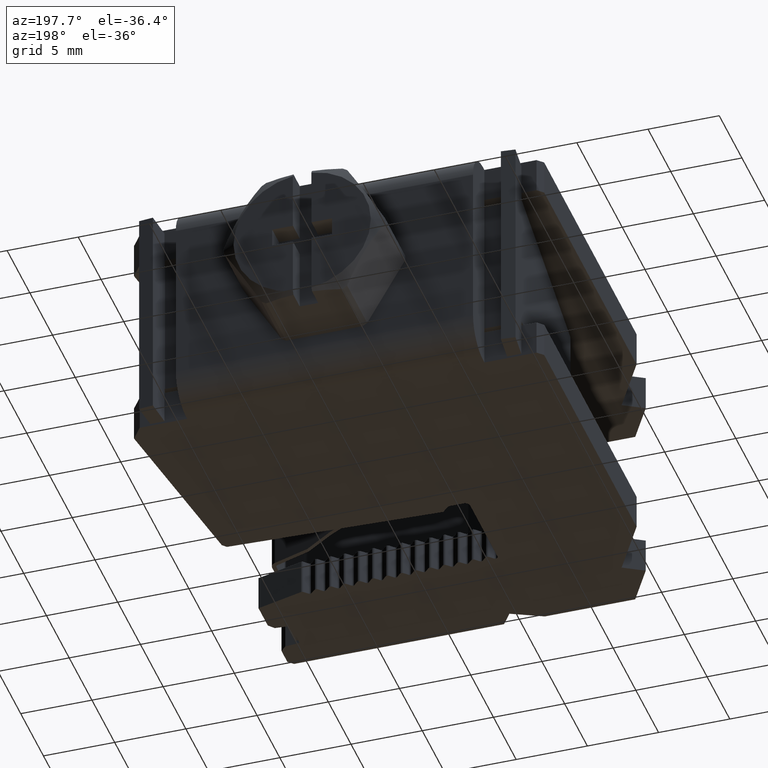
[diagram: clean part render]
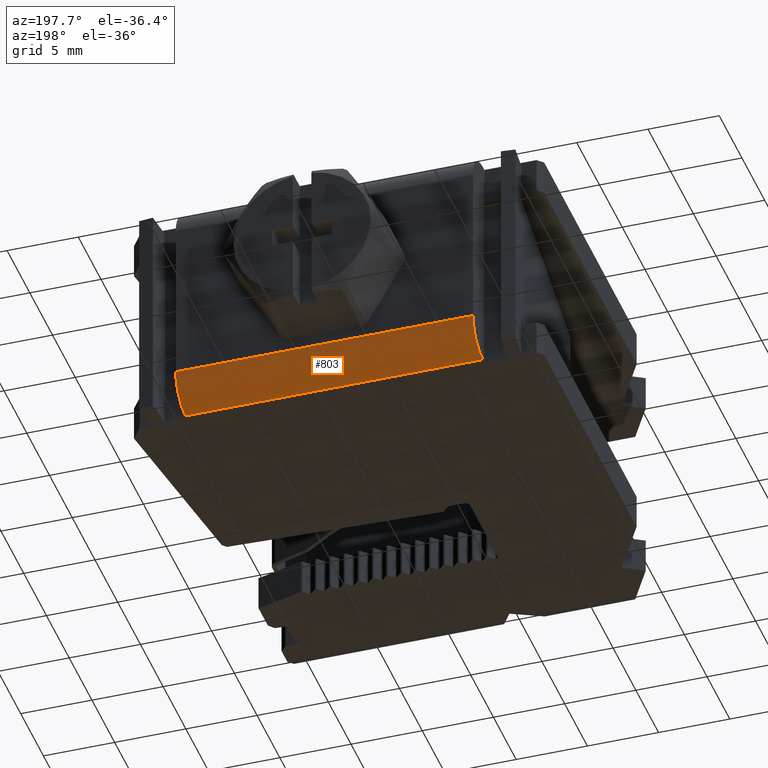
[diagram: same view with one face highlighted and labeled with its STEP entity id]
A machine part, auxiliary view. The second image highlights one B-rep face of the part: STEP entity #803.
In plain terms, the highlighted cylindrical surface (edge-blend (fillet) strip) has radius 2.15 mm, axis along (-1, -0, 0).
Its self-contained STEP definition (entity closure, byte-faithful):
#803 = ADVANCED_FACE ( 'NONE', ( #6444 ), #6418, .T. ) ;
#2039 = EDGE_CURVE ( 'NONE', #2259, #2277, #8437, .T. ) ;
#2044 = EDGE_CURVE ( 'NONE', #2237, #2259, #9202, .T. ) ;
#2073 = EDGE_CURVE ( 'NONE', #3571, #2237, #10522, .T. ) ;
#2086 = EDGE_CURVE ( 'NONE', #2277, #3571, #9257, .T. ) ;
#2237 = VERTEX_POINT ( 'NONE', #9857 ) ;
#2259 = VERTEX_POINT ( 'NONE', #9865 ) ;
#2277 = VERTEX_POINT ( 'NONE', #9846 ) ;
#3571 = VERTEX_POINT ( 'NONE', #10804 ) ;
#3592 = ORIENTED_EDGE ( 'NONE', *, *, #2086, .F. ) ;
#3631 = ORIENTED_EDGE ( 'NONE', *, *, #2044, .F. ) ;
#3641 = ORIENTED_EDGE ( 'NONE', *, *, #2073, .F. ) ;
#3656 = ORIENTED_EDGE ( 'NONE', *, *, #2039, .F. ) ;
#6188 = AXIS2_PLACEMENT_3D ( 'NONE', #6415, #6410, #6447 ) ;
#6410 = DIRECTION ( 'NONE',  ( -1.000000000000000000, -2.426186679687842200E-016, 0.0000000000000000000 ) ) ;
#6415 = CARTESIAN_POINT ( 'NONE',  ( 7.822759001598516400, 27.67833341090971200, -1.850000000000000100 ) ) ;
#6418 = CYLINDRICAL_SURFACE ( 'NONE', #6188, 2.149999999999999000 ) ;
#6444 = FACE_OUTER_BOUND ( 'NONE', #11812, .T. ) ;
#6447 = DIRECTION ( 'NONE',  ( 0.0000000000000000000, -1.000000000000000000, 0.0000000000000000000 ) ) ;
#8423 = CARTESIAN_POINT ( 'NONE',  ( 19.59127823012921600, 27.67833341090971500, -1.850000000000000100 ) ) ;
#8427 = DIRECTION ( 'NONE',  ( 1.000000000000000000, 0.0000000000000000000, 0.0000000000000000000 ) ) ;
#8437 = LINE ( 'NONE', #8444, #9236 ) ;
#8444 = CARTESIAN_POINT ( 'NONE',  ( 0.6762782301292138400, 29.82833341090970700, -1.850000000000000100 ) ) ;
#8453 = DIRECTION ( 'NONE',  ( 0.0000000000000000000, 0.0000000000000000000, -1.000000000000000000 ) ) ;
#8455 = DIRECTION ( 'NONE',  ( -1.000000000000000000, -2.426186679687842200E-016, -0.0000000000000000000 ) ) ;
#9202 = CIRCLE ( 'NONE', #9245, 2.149999999999999900 ) ;
#9236 = VECTOR ( 'NONE', #8455, 1000.000000000000000 ) ;
#9245 = AXIS2_PLACEMENT_3D ( 'NONE', #8423, #8427, #8453 ) ;
#9257 = CIRCLE ( 'NONE', #9260, 2.149999999999999000 ) ;
#9260 = AXIS2_PLACEMENT_3D ( 'NONE', #10585, #10586, #10564 ) ;
#9293 = VECTOR ( 'NONE', #10528, 1000.000000000000000 ) ;
#9846 = CARTESIAN_POINT ( 'NONE',  ( -1.278721769870786700, 29.82833341090970700, -1.850000000000000100 ) ) ;
#9857 = CARTESIAN_POINT ( 'NONE',  ( 19.59127823012921600, 27.67833341090971500, -4.000000000000000000 ) ) ;
#9865 = CARTESIAN_POINT ( 'NONE',  ( 19.59127823012921600, 29.82833341090971000, -1.850000000000000100 ) ) ;
#10522 = LINE ( 'NONE', #10532, #9293 ) ;
#10528 = DIRECTION ( 'NONE',  ( 1.000000000000000000, 2.426186679687842200E-016, 0.0000000000000000000 ) ) ;
#10532 = CARTESIAN_POINT ( 'NONE',  ( 14.97627823012921600, 27.67833341090971500, -4.000000000000000000 ) ) ;
#10564 = DIRECTION ( 'NONE',  ( 5.042800802258162300E-016, -1.000000000000000000, 0.0000000000000000000 ) ) ;
#10585 = CARTESIAN_POINT ( 'NONE',  ( -1.278721769870785100, 27.67833341090970800, -1.850000000000000100 ) ) ;
#10586 = DIRECTION ( 'NONE',  ( -1.000000000000000000, -4.770489558936222500E-016, 0.0000000000000000000 ) ) ;
#10804 = CARTESIAN_POINT ( 'NONE',  ( -1.278721769870786900, 27.67833341090971200, -4.000000000000000000 ) ) ;
#11812 = EDGE_LOOP ( 'NONE', ( #3641, #3592, #3656, #3631 ) ) ;